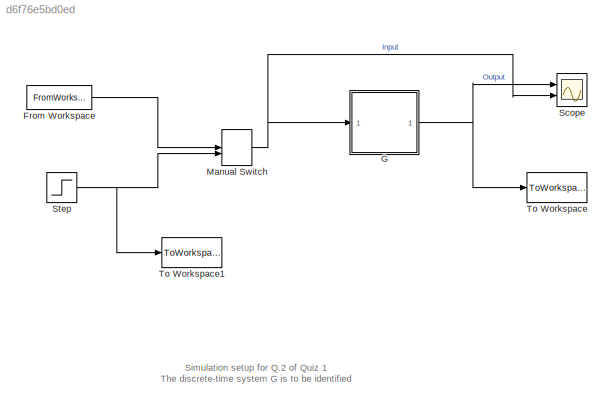
MODEL slx_d6f76e5bd0ed
KIND model
CONFIG AbsTol = auto
CONFIG EnableMultiTasking = on
CONFIG FixedStep = auto
CONFIG MaxStep = auto
CONFIG MinStep = auto
CONFIG RelTol = 1e-3
CONFIG SampleTimeConstraint = Unconstrained
CONFIG SolverName = ode45
CONFIG StartTime = 0.0
CONFIG StopTime = 1274
WORKSPACE source: MATLAB code (in-file)
WORKSPACE Ts = 1
WORKSPACE usig = idinput(1275,'prbs',[0 0.2],[-1 1])
WORKSPACE uin = [(0:1:length(usig)-1)'*Ts usig]
BLOCK [FromWorkspace] From Workspace
  Interpolate = off
  OutputAfterFinalValue = Holding final value
  SampleTime = Ts
  VariableName = uin
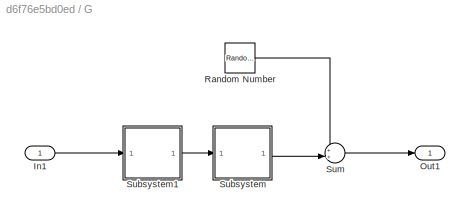
BLOCK [SubSystem] G
  Permissions = NoReadOrWrite
  Ports = [1, 1]
  RequestExecContextInheritance = off
BLOCK [Inport] G/In1
BLOCK [Outport] G/Out1
BLOCK [RandomNumber] G/Random Number
  SampleTime = Ts
  Variance = 0.1
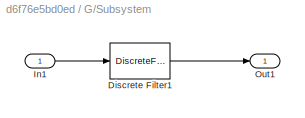
BLOCK [SubSystem] G/Subsystem
  Permissions = NoReadOrWrite
  Ports = [1, 1]
  RequestExecContextInheritance = off
BLOCK [DiscreteFilter] G/Subsystem/Discrete Filter1
  Denominator = 1
  InputPortMap = u0
  Numerator = [0 2 3]
  Ports = [1, 1]
BLOCK [Inport] G/Subsystem/In1
BLOCK [Outport] G/Subsystem/Out1
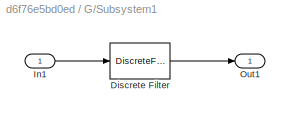
BLOCK [SubSystem] G/Subsystem1
  Permissions = NoReadOrWrite
  Ports = [1, 1]
  RequestExecContextInheritance = off
BLOCK [DiscreteFilter] G/Subsystem1/Discrete Filter
  Denominator = [1 -0.5]
  InputPortMap = u0
  Numerator = [0 0 2]
  Ports = [1, 1]
BLOCK [Inport] G/Subsystem1/In1
BLOCK [Outport] G/Subsystem1/Out1
BLOCK [Sum] G/Sum
  Inputs = ++|
  Ports = [2, 1]
BLOCK [ManualSwitch] Manual Switch
BLOCK [Scope] Scope
  Floating = off
  NumInputPorts = 2
  Ports = [2]
  ScopeSpecificationString = Simulink.scopes.TimeScopeBlockCfg('CurrentConfiguration', extmgr.ConfigurationSet(extmgr.Configuration('Core','General UI',true),extmgr.Configuration('Core','Source UI',true),extmgr.Configuration('Sources','WiredSimulink',true,'DataLoggingSaveFormat','StructureWithTime','DataLoggingLimitDataPoints',true,'DataLoggingDecimation','1','DataLoggingDecimateData',true),extmgr.Configuration('Visuals','Tim...<+2416ch>
BLOCK [Step] Step
  SampleTime = Ts
  Time = 5
BLOCK [ToWorkspace] To Workspace
  MaxDataPoints = inf
  Ports = [1]
  SampleTime = Ts
  VariableName = yk
BLOCK [ToWorkspace] To Workspace1
  MaxDataPoints = inf
  Ports = [1]
  SampleTime = Ts
  VariableName = uk
ANNOTATION (root): Simulation setup for Q.2 of Quiz 1 The discrete-time system G is to be identified
LINE From Workspace:1 -> Manual Switch:1
LINE G/In1:1 -> G/Subsystem1:1
LINE G/Random Number:1 -> G/Sum:1
LINE G/Subsystem/Discrete Filter1:1 -> G/Subsystem/Out1:1
LINE G/Subsystem/In1:1 -> G/Subsystem/Discrete Filter1:1
LINE G/Subsystem1/Discrete Filter:1 -> G/Subsystem1/Out1:1
LINE G/Subsystem1/In1:1 -> G/Subsystem1/Discrete Filter:1
LINE G/Subsystem1:1 -> G/Subsystem:1
LINE G/Subsystem:1 -> G/Sum:2
LINE G/Sum:1 -> G/Out1:1
NET G:1 -> Scope:1, To Workspace:1
NET Manual Switch:1 -> G:1, Scope:2
NET Step:1 -> Manual Switch:2, To Workspace1:1
note: NET lines group one-source signal fan-out (src -> all destinations, sorted); 1:1 wires keep LINE
